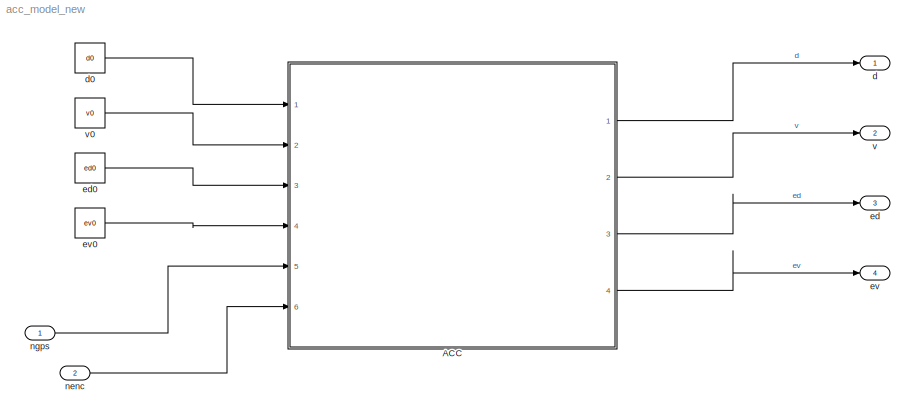
MODEL acc_model_new
KIND model
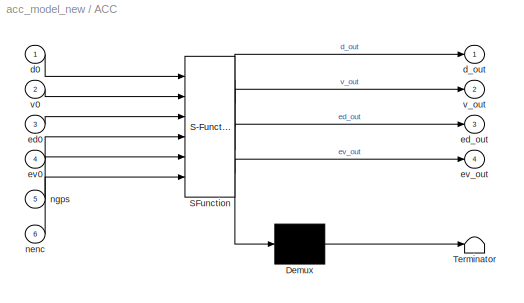
BLOCK [SubSystem] ACC
  ErrorFcn = Stateflow.Translate.translate
  PermitHierarchicalResolution = ExplicitOnly
  Ports = [6, 4]
  RequestExecContextInheritance = off
  SFBlockType = Chart
  SID = 1
  TreatAsAtomicUnit = on
  Variant = off
BLOCK [Demux] ACC/ Demux 
  Outputs = 1
  Ports = [1, 1]
  SID = 1::82
BLOCK [S-Function] ACC/ SFunction 
  EnableBusSupport = on
  FunctionName = sf_sfun
  Parameters = nrad,vl
  PortCounts = [6 5]
  Ports = [6, 5]
  SFcnIsStateOwnerBlock = off
  SFunctionDeploymentMode = off
  SID = 1::81
  Tag = Stateflow S-Function acc_model_new 3
BLOCK [Terminator] ACC/ Terminator 
  SID = 1::83
BLOCK [Inport] ACC/d0
  IconDisplay = Port number
  SID = 1::96
BLOCK [Outport] ACC/d_out
  IconDisplay = Port number
  SID = 1::88
BLOCK [Inport] ACC/ed0
  IconDisplay = Port number
  Port = 3
  SID = 1::98
BLOCK [Outport] ACC/ed_out
  IconDisplay = Port number
  Port = 3
  SID = 1::91
BLOCK [Inport] ACC/ev0
  IconDisplay = Port number
  Port = 4
  SID = 1::99
BLOCK [Outport] ACC/ev_out
  IconDisplay = Port number
  Port = 4
  SID = 1::92
BLOCK [Inport] ACC/nenc
  IconDisplay = Port number
  Port = 6
  SID = 1::101
BLOCK [Inport] ACC/ngps
  IconDisplay = Port number
  Port = 5
  SID = 1::100
BLOCK [Inport] ACC/v0
  IconDisplay = Port number
  Port = 2
  SID = 1::97
BLOCK [Outport] ACC/v_out
  IconDisplay = Port number
  Port = 2
  SID = 1::90
BLOCK [Outport] d
  IconDisplay = Port number
  SID = 11
BLOCK [Constant] d0
  SID = 3
  Value = d0
BLOCK [Outport] ed
  IconDisplay = Port number
  Port = 3
  SID = 13
BLOCK [Constant] ed0
  SID = 5
  Value = ed0
BLOCK [Outport] ev
  IconDisplay = Port number
  Port = 4
  SID = 14
BLOCK [Constant] ev0
  SID = 6
  Value = ev0
BLOCK [Inport] nenc
  IconDisplay = Port number
  Port = 2
  SID = 21
BLOCK [Inport] ngps
  IconDisplay = Port number
  SID = 20
BLOCK [Outport] v
  IconDisplay = Port number
  Port = 2
  SID = 12
BLOCK [Constant] v0
  SID = 4
  Value = v0
LINE ACC/ Demux :1 -> ACC/ Terminator :1
LINE ACC/ SFunction :1 -> ACC/ Demux :1
LINE ACC/ SFunction :2 -> ACC/d_out:1
LINE ACC/ SFunction :3 -> ACC/v_out:1
LINE ACC/ SFunction :4 -> ACC/ed_out:1
LINE ACC/ SFunction :5 -> ACC/ev_out:1
LINE ACC/d0:1 -> ACC/ SFunction :1
LINE ACC/ed0:1 -> ACC/ SFunction :3
LINE ACC/ev0:1 -> ACC/ SFunction :4
LINE ACC/nenc:1 -> ACC/ SFunction :6
LINE ACC/ngps:1 -> ACC/ SFunction :5
LINE ACC/v0:1 -> ACC/ SFunction :2
LINE ACC:1 -> d:1
LINE ACC:2 -> v:1
LINE ACC:3 -> ed:1
LINE ACC:4 -> ev:1
LINE d0:1 -> ACC:1
LINE ed0:1 -> ACC:3
LINE ev0:1 -> ACC:4
LINE nenc:1 -> ACC:6
LINE ngps:1 -> ACC:5
LINE v0:1 -> ACC:2
CHART ACC states=2 transitions=3
  STATE_LABEL 'Spacing_Control\\ndu:\\nd_dot = -v+vl;\\nv_dot = 2*vl - v - ev - 0.25*(10 + 2*ev - ed);\\ned_dot =  vl - ev + 10*(d + nrad - ed);\\nev_dot = 2*vl + v - 3*ev + 0.5*(ngps + nenc) - 0.25*(10 + 2*ev - ed);\\nd_out = d;\\nv_out = v;\\ned_out = ed;\\nev_out = ev;'
  STATE_LABEL 'Speed_Control\\ndu:\\nd_dot = -v+vl;\\nv_dot =  2*vl - v - ev;\\ned_dot =  vl - ev + 10*(d + nrad -ed);\\nev_dot = 2*vl + v - 3*ev + 0.5*(ngps + nenc);\\nd_out = d;\\nv_out = v;\\ned_out = ed;\\nev_out = ev;'
